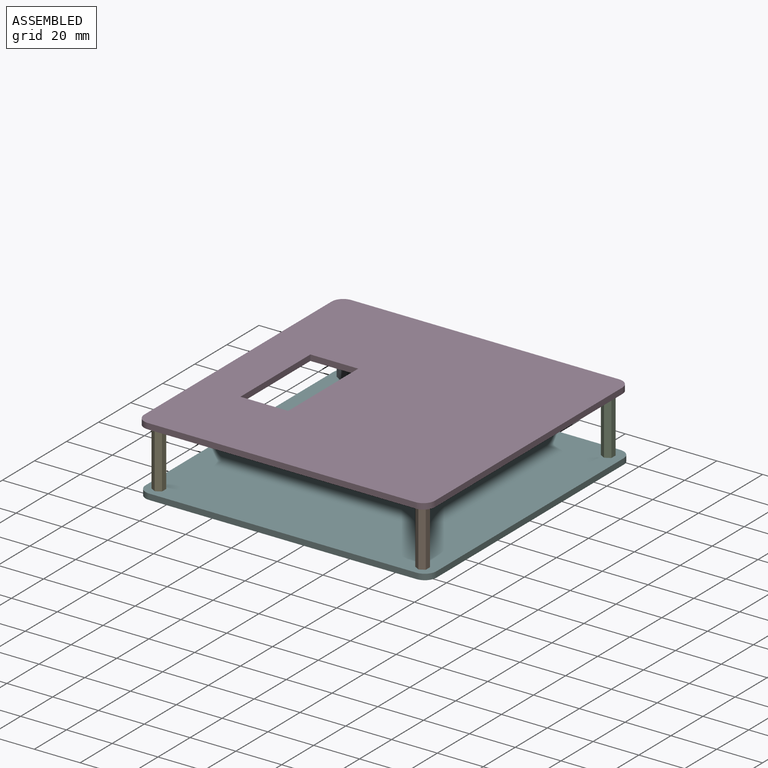
[diagram: assembled view]
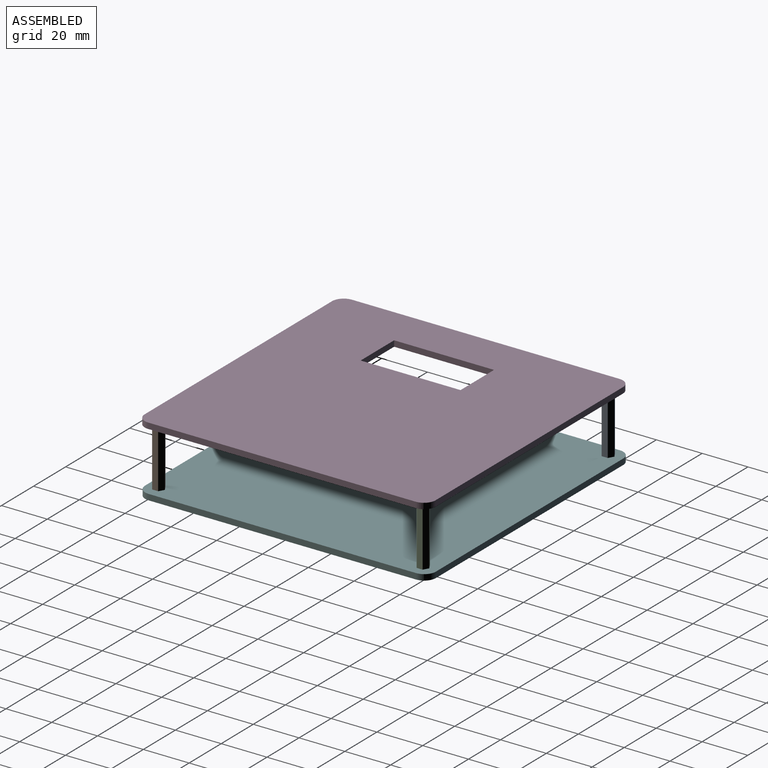
[diagram: assembled view, second angle]
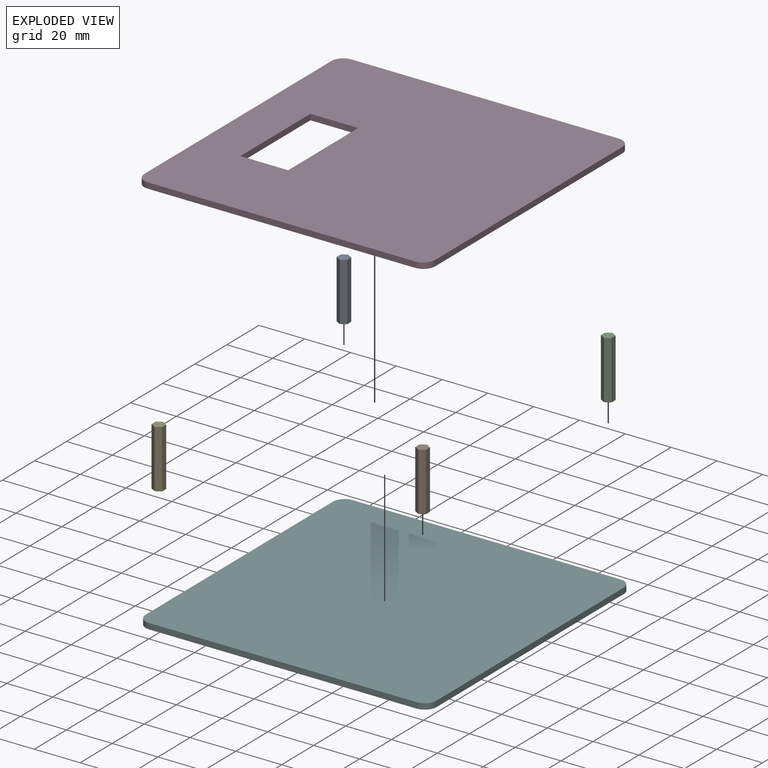
[diagram: exploded view]
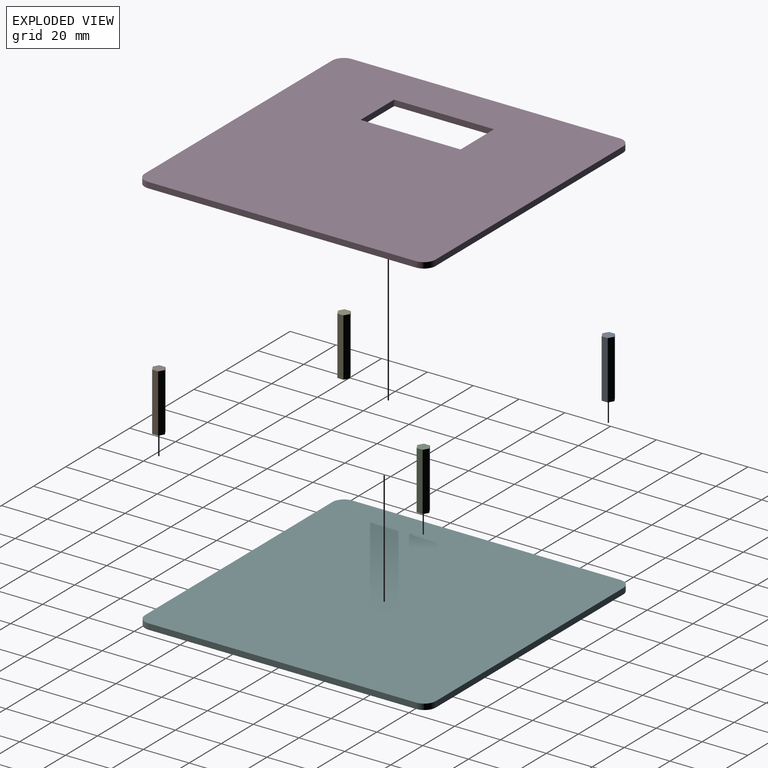
[diagram: exploded view, second angle]
ASSEMBLY  parts=6 mates=5
PART A: 8 faces, bbox 4.6x5.3x25.4 mm
  f0: plane 25.4x2.64mm, normal (1,0,0), area 67mm2, adj f1,f5,f6,f7
  f1: plane 25.4x2.28mm, normal (0.5,0.87,0), area 67mm2, adj f0,f2,f6,f7
  f2: plane 25.4x2.28mm, normal (-0.5,0.87,0), area 67mm2, adj f1,f3,f6,f7
  f3: plane 25.4x2.64mm, normal (-1,0,0), area 67mm2, adj f2,f4,f6,f7
  f4: plane 25.4x2.28mm, normal (-0.5,-0.87,0), area 67mm2, adj f3,f5,f6,f7
  f5: plane 25.4x2.28mm, normal (0.5,-0.87,0), area 67mm2, adj f0,f4,f6,f7
  f6: plane 5.28x4.57mm, normal (0,0,1), area 18.1mm2, adj f0,f1,f2,f3,f4,f5
  f7: plane 5.28x4.57mm, normal (0,0,-1), area 18.1mm2, adj f0,f1,f2,f3,f4,f5
PART B: same geometry as A
PART C: same geometry as A
PART D: 14 faces, bbox 127x127x2.5 mm
  f0: plane 127x127mm, normal (0,0,1), area 15195.1mm2, adj f2,f3,f4,f5,f6,f7,f8,f9
  f1: plane 127x127mm, normal (0,0,-1), area 15195.1mm2, adj f2,f3,f4,f5,f6,f7,f8,f9
  f2: plane 116.84x2.54mm, normal (1,0,0), area 296.8mm2, adj f0,f1,f6,f9
  f3: plane 116.84x2.54mm, normal (0,1,0), area 296.8mm2, adj f0,f1,f6,f7
  f4: plane 116.84x2.54mm, normal (-1,0,0), area 296.8mm2, adj f0,f1,f7,f8
  f5: plane 116.84x2.54mm, normal (0,-1,0), area 296.8mm2, adj f0,f1,f8,f9
  f6: cylinder r=5.08mm len=5.08mm, axis (0,0,1), area 20.3mm2, adj f0,f1,f2,f3
  f7: cylinder r=5.08mm len=5.08mm, axis (0,0,-1), area 20.3mm2, adj f0,f1,f3,f4
  f8: cylinder r=5.08mm len=5.08mm, axis (0,0,1), area 20.3mm2, adj f0,f1,f4,f5
  f9: cylinder r=5.08mm len=5.08mm, axis (0,0,-1), area 20.3mm2, adj f0,f1,f2,f5
  f10: plane 20.88x2.54mm, normal (0,-1,0), area 53mm2, adj f0,f1,f11,f13
  f11: plane 43.66x2.54mm, normal (1,0,0), area 110.9mm2, adj f0,f1,f10,f12
  f12: plane 20.88x2.54mm, normal (0,1,0), area 53mm2, adj f0,f1,f11,f13
  f13: plane 43.66x2.54mm, normal (-1,0,0), area 110.9mm2, adj f0,f1,f10,f12
PART E: same geometry as A
PART F: 10 faces, bbox 127x127x2.5 mm
  f0: plane 116.84x2.54mm, normal (0,-1,0), area 296.8mm2, adj f4,f5,f6,f9
  f1: plane 116.84x2.54mm, normal (1,0,0), area 296.8mm2, adj f4,f5,f6,f7
  f2: plane 116.84x2.54mm, normal (0,1,0), area 296.8mm2, adj f4,f5,f7,f8
  f3: plane 116.84x2.54mm, normal (-1,0,0), area 296.8mm2, adj f4,f5,f8,f9
  f4: plane 127x127mm, normal (0,0,1), area 16106.8mm2, adj f0,f1,f2,f3,f6,f7,f8,f9
  f5: plane 127x127mm, normal (0,0,-1), area 16106.8mm2, adj f0,f1,f2,f3,f6,f7,f8,f9
  f6: cylinder r=5.08mm len=5.08mm, axis (0,0,-1), area 20.3mm2, adj f0,f1,f4,f5
  f7: cylinder r=5.08mm len=5.08mm, axis (0,0,1), area 20.3mm2, adj f1,f2,f4,f5
  f8: cylinder r=5.08mm len=5.08mm, axis (0,0,-1), area 20.3mm2, adj f2,f3,f4,f5
  f9: cylinder r=5.08mm len=5.08mm, axis (0,0,1), area 20.3mm2, adj f0,f3,f4,f5
PLACE A t=(-120.65,122.63,-33.34)mm
PLACE B t=(-5.33,7.02,-33.34)mm
PLACE C t=(-5.2,122.62,-33.34)mm
PLACE D t=(-63.04,64.9,-7.94)mm
PLACE E t=(-120.64,7.18,-33.34)mm
PLACE F t=(-62.71,65.28,-35.88)mm
MATE planar E.f7 <-> F.f4  axis (0,0,-1) through (-120.64,7.18,-33.34)mm
MATE planar D.f1 <-> A.f6  axis (0,0,-1) through (-61.02,65.17,-7.94)mm
MATE planar F.f6 <-> B.f7  axis (0,0,1) through (-4.29,6.86,-33.34)mm
MATE planar A.f7 <-> F.f8  axis (0,0,-1) through (-120.65,122.63,-33.34)mm
MATE planar C.f7 <-> F.f4  axis (0,0,-1) through (-5.2,122.62,-33.34)mm
